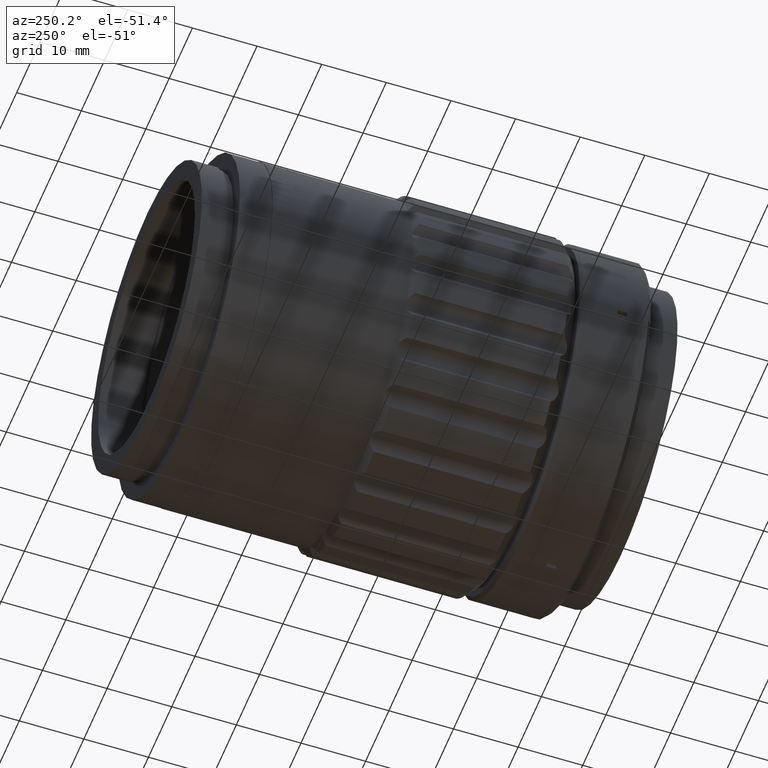
[diagram: clean part render]
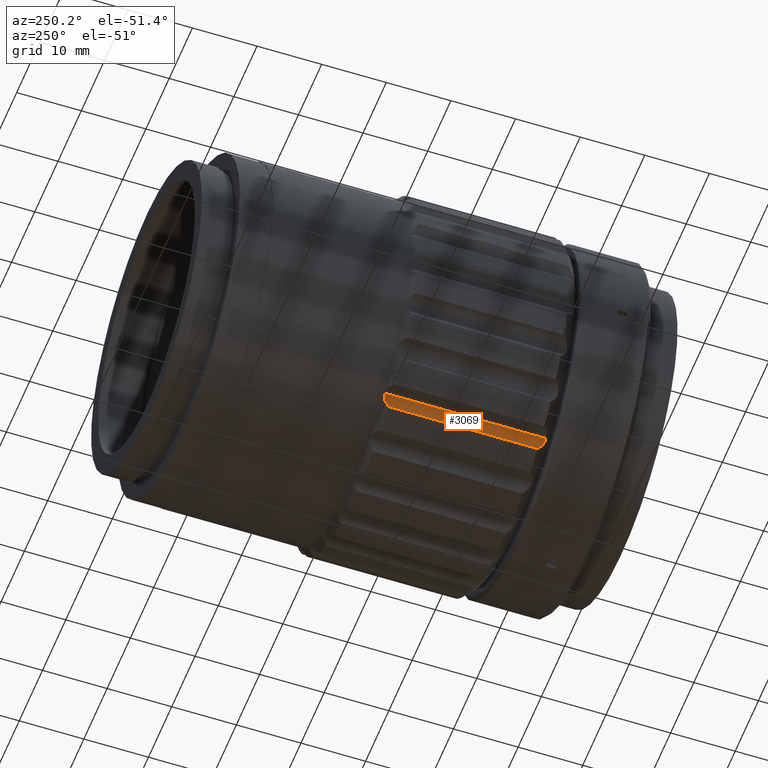
[diagram: same view with one face highlighted and labeled with its STEP entity id]
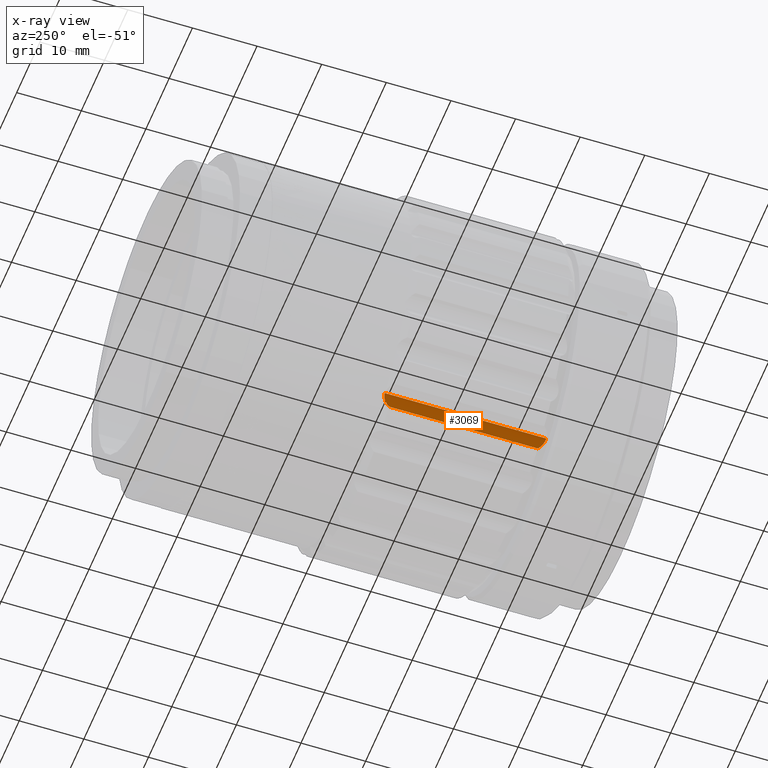
[diagram: x-ray of the same camera — body ghosted, the highlighted face saturated]
A machine part, auxiliary view. The second image highlights one B-rep face of the part: STEP entity #3069.
The next image is the same camera in x-ray: the body ghosted, the highlighted face saturated — about 0% of this face is hidden behind the body in this view.
In plain terms, the highlighted cylindrical surface (edge-blend (fillet) strip) has radius 2 mm, axis along (0, -1, 0).
Its self-contained STEP definition (entity closure, byte-faithful):
#1827 = CARTESIAN_POINT ( 'NONE',  ( 25.29891584729693600, -3.364064236255757100, 7.543477619177156000 ) ) ;
#3069 = ADVANCED_FACE ( 'NONE', ( #82748 ), #21181, .F. ) ;
#3089 = CARTESIAN_POINT ( 'NONE',  ( 25.48595755899750200, -27.69403601927517800, 8.193788467767813400 ) ) ;
#3818 = DIRECTION ( 'NONE',  ( -0.0000000000000000000, -1.000000000000000000, 0.0000000000000000000 ) ) ;
#4642 = B_SPLINE_CURVE_WITH_KNOTS ( 'NONE', 3,
 ( #47925, #48496, #8526, #81701, #1827, #54628, #27532, #68011, #35365, #75257, #8816, #34510 ),
 .UNSPECIFIED., .F., .F.,
 ( 4, 2, 2, 2, 2, 4 ),
 ( 0.002293443254639924200, 0.002866010891116040300, 0.003152294709354098800, 0.003438578527592156900, 0.004011146164068266100, 0.004583713800544376100 ),
 .UNSPECIFIED. ) ;
#5282 = ORIENTED_EDGE ( 'NONE', *, *, #48779, .T. ) ;
#8526 = CARTESIAN_POINT ( 'NONE',  ( 25.28355260651679600, -3.245789140871166500, 7.174614138815815800 ) ) ;
#8816 = CARTESIAN_POINT ( 'NONE',  ( 25.73047760257593100, -4.086351499841624600, 8.575420334730028000 ) ) ;
#14184 = LINE ( 'NONE', #65277, #36110 ) ;
#15894 = CARTESIAN_POINT ( 'NONE',  ( 25.83012324300420600, -4.214578211897617200, 8.681430368966506000 ) ) ;
#16629 = AXIS2_PLACEMENT_3D ( 'NONE', #43522, #3818, #23656 ) ;
#17102 = CARTESIAN_POINT ( 'NONE',  ( 25.31222772085741100, -28.20691269605202900, 6.983201188597655900 ) ) ;
#19689 = LINE ( 'NONE', #57369, #72884 ) ;
#21181 = CYLINDRICAL_SURFACE ( 'NONE', #16629, 2.000000000000001300 ) ;
#23515 = CARTESIAN_POINT ( 'NONE',  ( 25.33063855865777100, -28.21457821189759600, 6.886981671278380900 ) ) ;
#23656 = DIRECTION ( 'NONE',  ( -0.9659258262890654300, 0.0000000000000000000, -0.2588190451025313400 ) ) ;
#24792 = VERTEX_POINT ( 'NONE', #35920 ) ;
#25374 = CARTESIAN_POINT ( 'NONE',  ( 25.83012324300420200, -27.21457821189765600, 8.681430368966511300 ) ) ;
#27532 = CARTESIAN_POINT ( 'NONE',  ( 25.34661931656172100, -3.484700486296733700, 7.801964487385189000 ) ) ;
#29947 = CARTESIAN_POINT ( 'NONE',  ( 25.32733093522229200, -27.98722358619830100, 7.718998896670393100 ) ) ;
#33041 = VERTEX_POINT ( 'NONE', #15894 ) ;
#34334 = VERTEX_POINT ( 'NONE', #25374 ) ;
#34510 = CARTESIAN_POINT ( 'NONE',  ( 25.83012324300420600, -4.214578211897617200, 8.681430368966506000 ) ) ;
#35365 = CARTESIAN_POINT ( 'NONE',  ( 25.48535271099968100, -3.734194245562725300, 8.192648927184928100 ) ) ;
#35548 = EDGE_CURVE ( 'NONE', #34334, #51373, #53815, .T. ) ;
#35920 = CARTESIAN_POINT ( 'NONE',  ( 25.35555294008803500, -3.214578211897681100, 6.793999933941469400 ) ) ;
#36110 = VECTOR ( 'NONE', #78108, 1000.000000000000000 ) ;
#43094 = CARTESIAN_POINT ( 'NONE',  ( 25.64107320480718900, -27.46488145372640200, 8.457497431598083500 ) ) ;
#43522 = CARTESIAN_POINT ( 'NONE',  ( 27.28740459266616700, -2.714578211897591900, 7.311638024146531300 ) ) ;
#43891 = ORIENTED_EDGE ( 'NONE', *, *, #35548, .T. ) ;
#47925 = CARTESIAN_POINT ( 'NONE',  ( 25.35555294008803500, -3.214578211897681100, 6.793999933941469400 ) ) ;
#48136 = ORIENTED_EDGE ( 'NONE', *, *, #69726, .T. ) ;
#48496 = CARTESIAN_POINT ( 'NONE',  ( 25.30578664326630900, -3.214578211897682000, 6.979730282184737800 ) ) ;
#48779 = EDGE_CURVE ( 'NONE', #33041, #34334, #14184, .T. ) ;
#49776 = CARTESIAN_POINT ( 'NONE',  ( 25.35555294008803500, -28.21457821189758500, 6.793999933941468500 ) ) ;
#51373 = VERTEX_POINT ( 'NONE', #63802 ) ;
#53815 = B_SPLINE_CURVE_WITH_KNOTS ( 'NONE', 3,
 ( #56783, #69851, #43094, #3089, #56477, #55899, #29947, #76561, #82986, #76857, #77139, #17102, #23515, #49776 ),
 .UNSPECIFIED., .F., .F.,
 ( 4, 2, 2, 2, 2, 2, 4 ),
 ( 2.979895395338409900E-007, 0.0005735843058146332000, 0.001146870622089732500, 0.001433513780227278400, 0.001720156938364824200, 0.002006800096502369900, 0.002293443254639916000 ),
 .UNSPECIFIED. ) ;
#54628 = CARTESIAN_POINT ( 'NONE',  ( 25.32717659822441200, -3.441570337347436200, 7.718262295545743600 ) ) ;
#55899 = CARTESIAN_POINT ( 'NONE',  ( 25.34684347767259600, -27.94395996729930000, 7.802924978554160300 ) ) ;
#56477 = CARTESIAN_POINT ( 'NONE',  ( 25.41937705371178100, -27.80261297679607000, 8.045827620971776300 ) ) ;
#56783 = CARTESIAN_POINT ( 'NONE',  ( 25.83012324300420200, -27.21457821189765600, 8.681430368966511300 ) ) ;
#57237 = ORIENTED_EDGE ( 'NONE', *, *, #61163, .F. ) ;
#57369 = CARTESIAN_POINT ( 'NONE',  ( 25.35555294008803500, -2.714578211897591900, 6.793999933941468500 ) ) ;
#61163 = EDGE_CURVE ( 'NONE', #24792, #51373, #19689, .T. ) ;
#63802 = CARTESIAN_POINT ( 'NONE',  ( 25.35555294008803500, -28.21457821189758500, 6.793999933941468500 ) ) ;
#64045 = DIRECTION ( 'NONE',  ( -0.0000000000000000000, -1.000000000000000000, 0.0000000000000000000 ) ) ;
#65277 = CARTESIAN_POINT ( 'NONE',  ( 25.83012324300420200, -15.71457821189758900, 8.681430368966507800 ) ) ;
#68011 = CARTESIAN_POINT ( 'NONE',  ( 25.41861111651284200, -3.625167664365871000, 8.043676996791127500 ) ) ;
#69726 = EDGE_CURVE ( 'NONE', #24792, #33041, #4642, .T. ) ;
#69851 = CARTESIAN_POINT ( 'NONE',  ( 25.73045702593422800, -27.34283140253415600, 8.575398443852687800 ) ) ;
#72884 = VECTOR ( 'NONE', #64045, 1000.000000000000000 ) ;
#75257 = CARTESIAN_POINT ( 'NONE',  ( 25.64093499690650200, -3.964103246584267800, 8.457373188017003300 ) ) ;
#76561 = CARTESIAN_POINT ( 'NONE',  ( 25.29901166639445600, -28.06476916104586600, 7.544286243184169300 ) ) ;
#76857 = CARTESIAN_POINT ( 'NONE',  ( 25.28574919219871800, -28.15530689563527700, 7.267491529151405100 ) ) ;
#77139 = CARTESIAN_POINT ( 'NONE',  ( 25.28986641678071500, -28.17713089429709000, 7.173668223995104400 ) ) ;
#78108 = DIRECTION ( 'NONE',  ( -0.0000000000000000000, -1.000000000000000000, 0.0000000000000000000 ) ) ;
#79952 = EDGE_LOOP ( 'NONE', ( #57237, #48136, #5282, #43891 ) ) ;
#81701 = CARTESIAN_POINT ( 'NONE',  ( 25.29018935571018300, -3.329652064939129000, 7.451926580905610100 ) ) ;
#82748 = FACE_OUTER_BOUND ( 'NONE', #79952, .T. ) ;
#82986 = CARTESIAN_POINT ( 'NONE',  ( 25.29023232802958200, -28.09926723534074000, 7.452621003995853100 ) ) ;